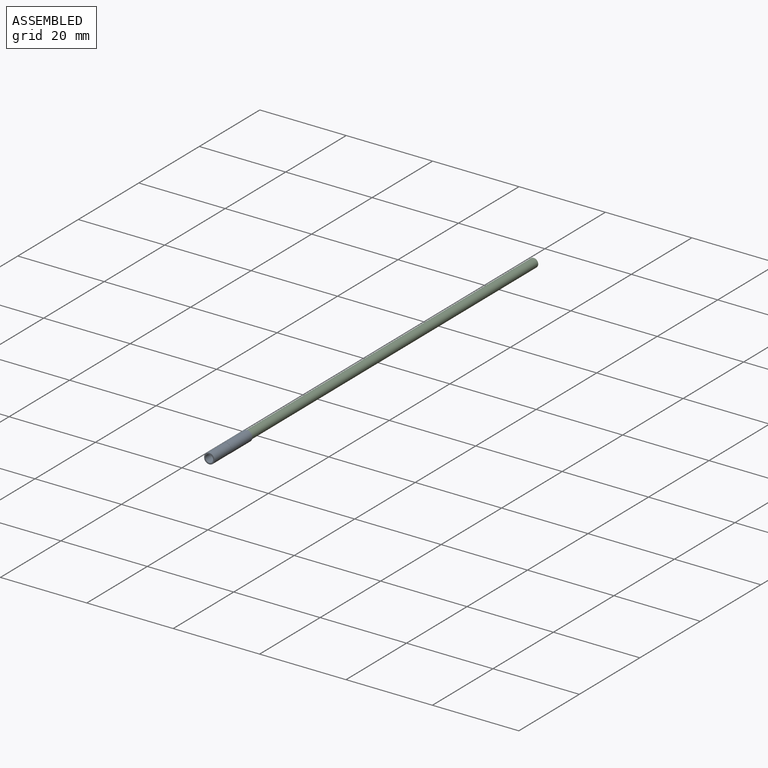
[diagram: assembled view]
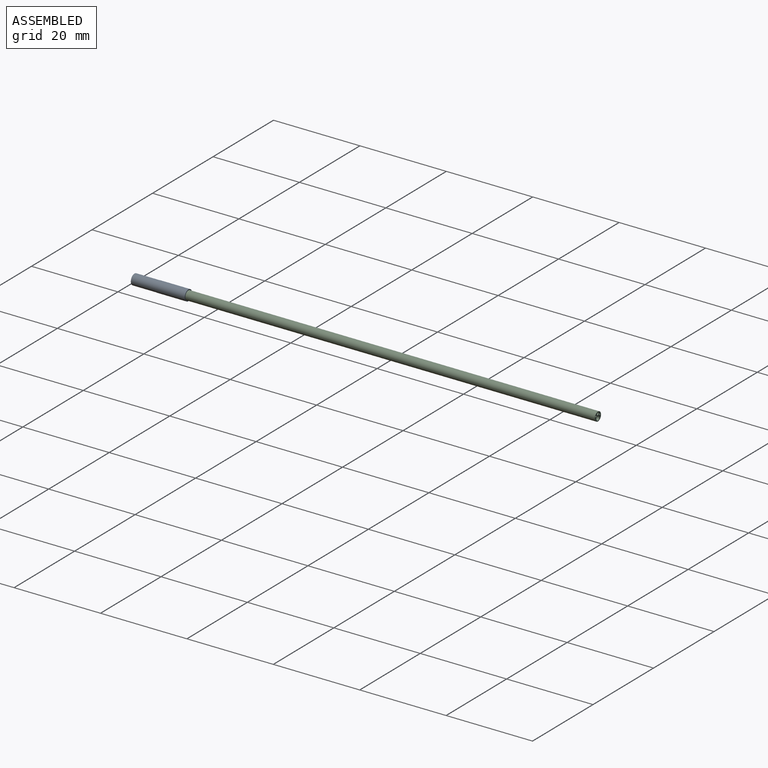
[diagram: assembled view, second angle]
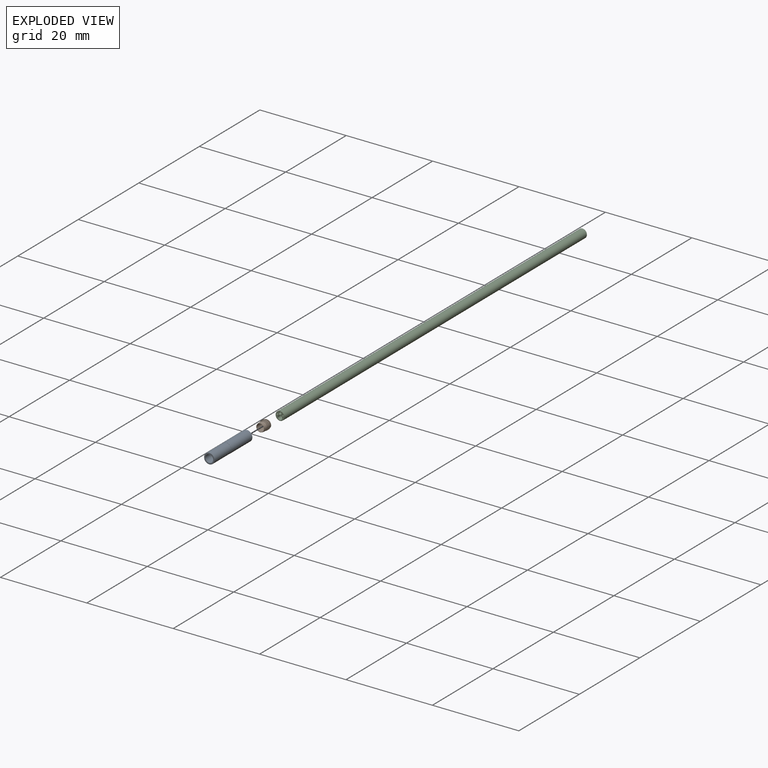
[diagram: exploded view]
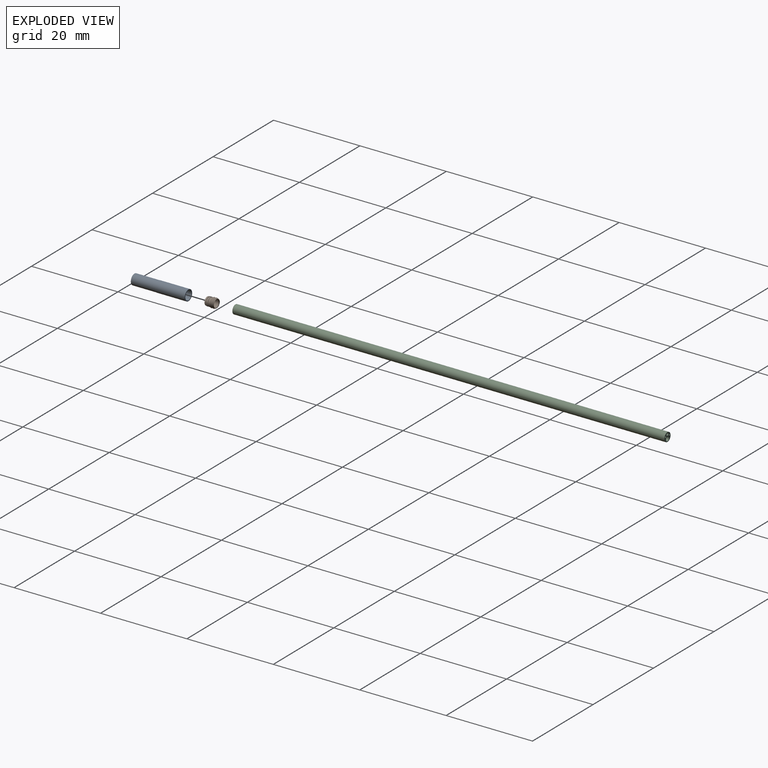
[diagram: exploded view, second angle]
ASSEMBLY  parts=3 mates=2
PART A: 8 faces, bbox 12.5x2.5x2.5 mm
  f0: plane 2.45x2.45mm, normal (-1,0,0), area 1.3mm2, adj f1,f7
  f1: cylinder r=1.05mm len=6.41mm, axis (-1,0,0), area 42.3mm2, adj f0,f2
  f2: plane 2.1x2.1mm, normal (-1,0,0), area 0.9mm2, adj f1,f3
  f3: cylinder r=0.9mm len=6.1mm, axis (-1,0,0), area 34.5mm2, adj f2,f4
  f4: plane 2.4x2.4mm, normal (1,0,0), area 2mm2, adj f3,f5
  f5: cylinder r=1.2mm len=5.62mm, axis (-1,0,0), area 42.3mm2, adj f4,f6
  f6: plane 2.45x2.45mm, normal (1,0,0), area 0.2mm2, adj f5,f7
  f7: cylinder r=1.22mm len=6.89mm, axis (-1,0,0), area 53.1mm2, adj f0,f6
PART B: 15 faces, bbox 2.2x2.2x2.2 mm
  f0: cone r=0.97mm half-angle=17.4deg, axis (1,0,0), area 2.7mm2, adj f1,f13
  f1: plane 1.95x1.95mm, normal (-1,0,0), area 0.2mm2, adj f0,f14
  f2: cylinder r=0.85mm len=2.1mm, axis (-1,0,0), area 11.2mm2, adj f3,f14
  f3: plane 1.85x1.85mm, normal (1,0,0), area 0.4mm2, adj f2,f4
  f4: cone r=0.93mm half-angle=10.6deg, axis (-1,0,0), area 2.5mm2, adj f3,f5
  f5: plane 2x2mm, normal (-1,0,0), area 0.5mm2, adj f4,f6
  f6: cone r=0.93mm half-angle=10.6deg, axis (-1,0,0), area 2.5mm2, adj f5,f7
  f7: plane 2x2mm, normal (-1,0,0), area 0.5mm2, adj f6,f8
  f8: cylinder r=0.93mm len=1.85mm, axis (-1,0,0), area 1.5mm2, adj f7,f9
  f9: plane 2x2mm, normal (1,0,0), area 0.5mm2, adj f8,f10
  f10: cylinder r=1mm len=2mm, axis (-1,0,0), area 1.6mm2, adj f9,f11
  f11: plane 2.2x2.2mm, normal (1,0,0), area 0.7mm2, adj f10,f12
  f12: cone r=0.97mm half-angle=14deg, axis (1,0,0), area 3.4mm2, adj f11,f13
  f13: plane 2.2x2.2mm, normal (1,0,0), area 0.8mm2, adj f0,f12
  f14: cone r=0.85mm half-angle=45deg, axis (-1,0,0), area 0.8mm2, adj f1,f2
PART C: 7 faces, bbox 2.1x100x2.1 mm
  f0: cylinder r=0.3mm len=100mm, axis (0,1,0), area 188.5mm2, adj f5,f6
  f1: cylinder r=0.17mm len=100mm, axis (0,1,0), area 110mm2, adj f5,f6
  f2: cylinder r=0.5mm len=100mm, axis (0,1,0), area 314.2mm2, adj f5,f6
  f3: cylinder r=0.17mm len=100mm, axis (0,1,0), area 110mm2, adj f5,f6
  f4: cylinder r=1.03mm len=100mm, axis (0,1,0), area 644mm2, adj f5,f6
  f5: plane 2.05x2.05mm, normal (0,-1,0), area 2mm2, adj f0,f1,f2,f3,f4
  f6: plane 2.05x2.05mm, normal (0,1,0), area 2mm2, adj f0,f1,f2,f3,f4
PLACE A rot(axis=(0.58,-0.58,-0.58),120deg) t=(-18.76,-55.2,7.1)mm
PLACE B rot(axis=(0.71,-0.71,0),180deg) t=(-18.76,-58.83,10.53)mm
PLACE C t=(72.21,45.99,-18.68)mm
MATE slider A.f1 <-> B.f0  axis (0,-1,0) through (-18.76,-61.29,7.1)mm
MATE slider A.f1 <-> C.f4  axis (0,1,0) through (-18.76,-48.78,7.1)mm
